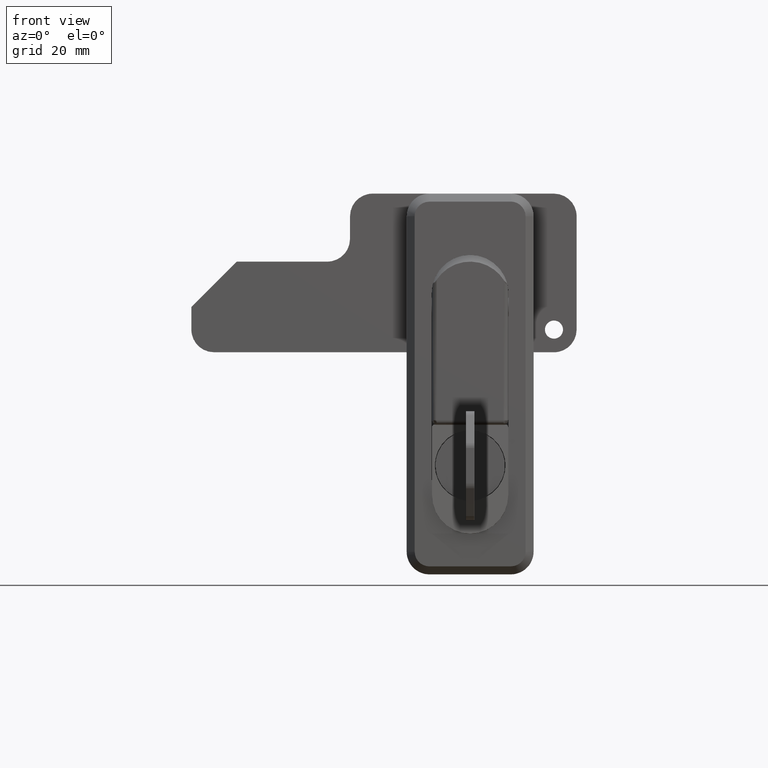
[diagram: clean part render]
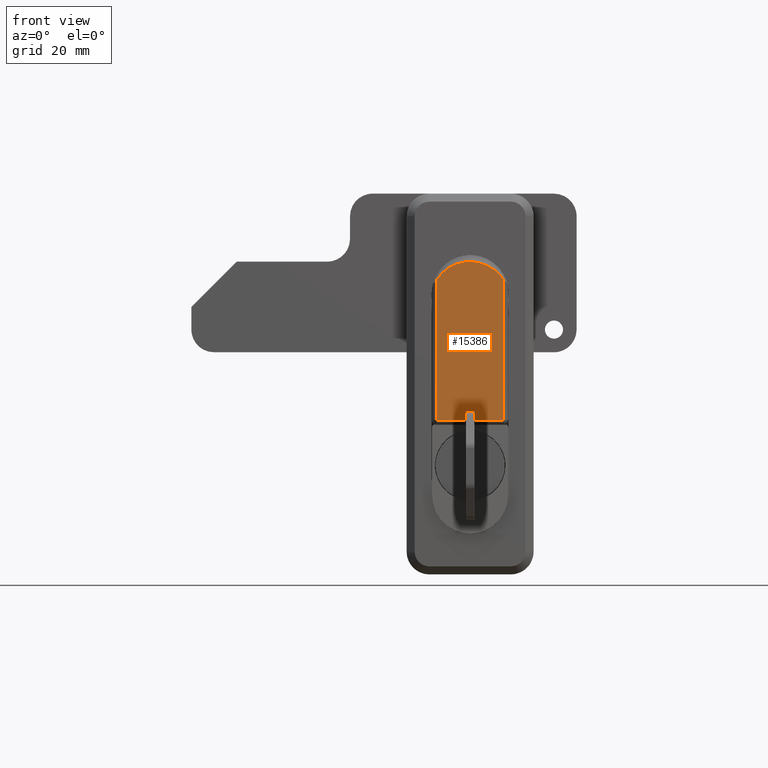
[diagram: same view with one face highlighted and labeled with its STEP entity id]
A machine part, front view. The second image highlights one B-rep face of the part: STEP entity #15386.
In plain terms, the highlighted face is a freeform B-spline surface patch.
Its self-contained STEP definition (entity closure, byte-faithful):
#12799=CARTESIAN_POINT('',(-15.0,-7.400000000000000,-25.000000000006349));
#12800=VERTEX_POINT('',#12799);
#12846=CARTESIAN_POINT('',(-15.0,7.400000000000000,-25.000000000006349));
#12847=VERTEX_POINT('',#12846);
#12848=CARTESIAN_POINT('',(-15.0,7.400000000000000,-25.000000000006349));
#12849=CARTESIAN_POINT('',(-15.0,-7.400000000000000,-25.000000000006349));
#12850=QUASI_UNIFORM_CURVE('',1,(#12848,#12849),.UNSPECIFIED.,.F.,.U.);
#12851=EDGE_CURVE('',#12847,#12800,#12850,.T.);
#12991=CARTESIAN_POINT('',(-15.0,-7.400000000000000,5.970368590570529));
#12992=VERTEX_POINT('',#12991);
#12993=CARTESIAN_POINT('',(-15.0,-7.400000000000000,-25.000000000006349));
#12994=CARTESIAN_POINT('',(-15.0,-7.400000000000000,5.970368590570529));
#12995=QUASI_UNIFORM_CURVE('',1,(#12993,#12994),.UNSPECIFIED.,.F.,.U.);
#12996=EDGE_CURVE('',#12800,#12992,#12995,.T.);
#13074=CARTESIAN_POINT('',(-15.0,7.400000000000000,5.970368590570410));
#13075=VERTEX_POINT('',#13074);
#13076=CARTESIAN_POINT('',(-15.0,7.400000000000000,5.970368590570410));
#13077=CARTESIAN_POINT('',(-15.0,7.400000000000000,-25.000000000006349));
#13078=QUASI_UNIFORM_CURVE('',1,(#13076,#13077),.UNSPECIFIED.,.F.,.U.);
#13079=EDGE_CURVE('',#13075,#12847,#13078,.T.);
#13207=CARTESIAN_POINT('',(-15.0,7.400000000000023,5.970368590570424));
#13208=CARTESIAN_POINT('',(-15.0,4.797157384852038,9.999999999993628));
#13209=CARTESIAN_POINT('',(-15.0,0.0,9.999999999993630));
#13210=CARTESIAN_POINT('',(-15.0,-4.797157384851974,9.999999999993628));
#13211=CARTESIAN_POINT('',(-15.0,-7.399999999999970,5.970368590570510));
#13219=(BOUNDED_CURVE()B_SPLINE_CURVE(2,(#13207,#13208,#13209,#13210,#13211),.UNSPECIFIED.,.F.,.U.)B_SPLINE_CURVE_WITH_KNOTS((3,2,3),(0.0,0.500000000000000,1.0),.UNSPECIFIED.)CURVE()GEOMETRIC_REPRESENTATION_ITEM()RATIONAL_B_SPLINE_CURVE((1.0,0.878231233896941,1.0,0.878231233896941,1.0))REPRESENTATION_ITEM(''));
#13220=EDGE_CURVE('',#13075,#12992,#13219,.T.);
#15375=CARTESIAN_POINT('',(-15.0,-8.139260110246541,11.748249932156840));
#15376=CARTESIAN_POINT('',(-15.0,-8.139260110246541,-26.748250870942719));
#15377=CARTESIAN_POINT('',(-15.0,8.139260374891164,11.748249932156840));
#15378=CARTESIAN_POINT('',(-15.0,8.139260374891164,-26.748250870942719));
#15379=B_SPLINE_SURFACE_WITH_KNOTS('',1,1,((#15375,#15377),(#15376,#15378)),.UNSPECIFIED.,.F.,.F.,.U.,(2,2),(2,2),(0.0,38.496500803099551),(0.0,16.278520485137712),.UNSPECIFIED.);
#15380=ORIENTED_EDGE('',*,*,#13079,.T.);
#15381=ORIENTED_EDGE('',*,*,#12851,.T.);
#15382=ORIENTED_EDGE('',*,*,#12996,.T.);
#15383=ORIENTED_EDGE('',*,*,#13220,.F.);
#15384=EDGE_LOOP('',(#15380,#15381,#15382,#15383));
#15385=FACE_OUTER_BOUND('',#15384,.T.);
#15386=ADVANCED_FACE('',(#15385),#15379,.F.);